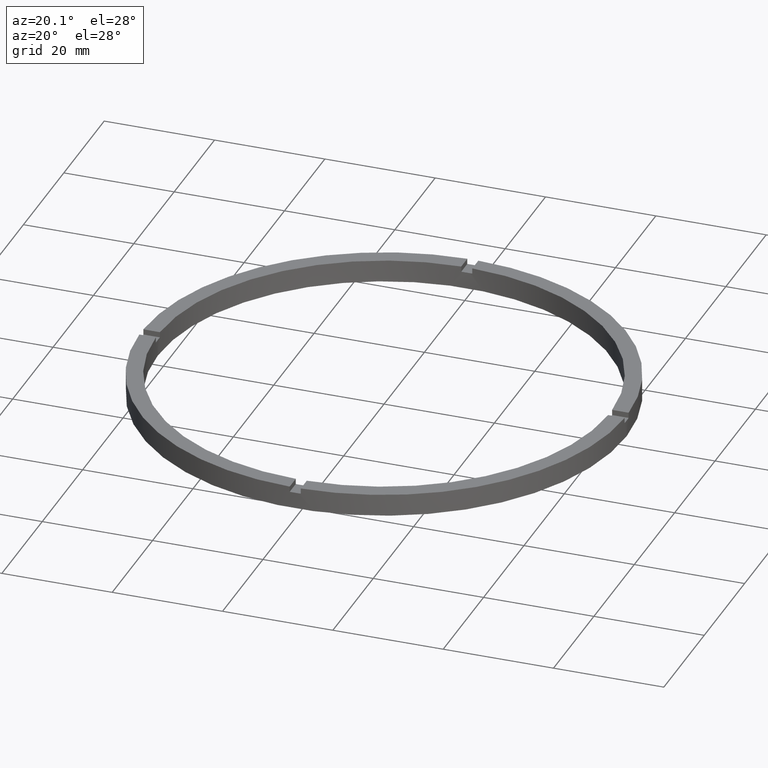
[diagram: clean part render]
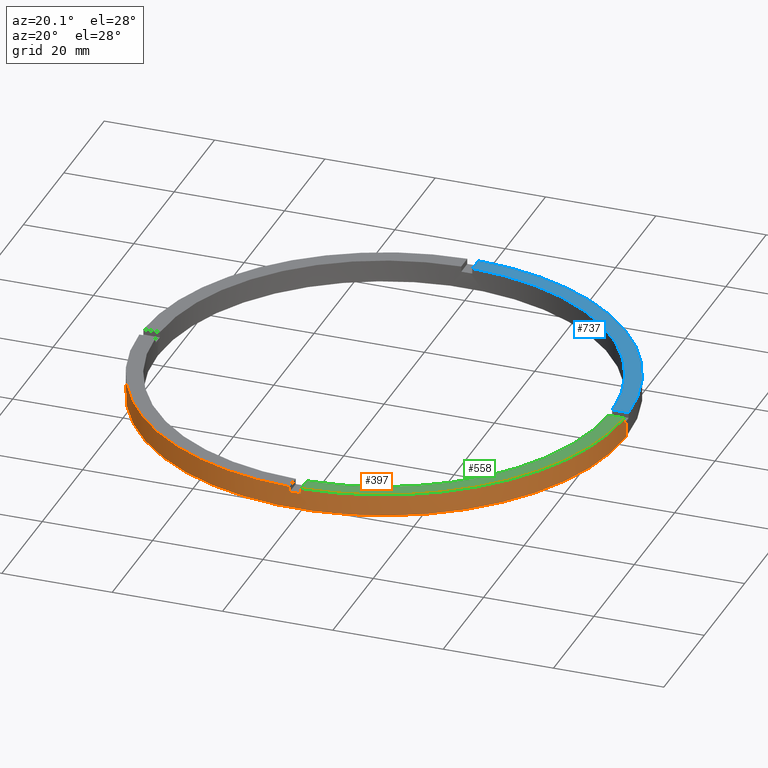
[diagram: same view with three faces highlighted in distinct colors, each labeled with its STEP entity id]
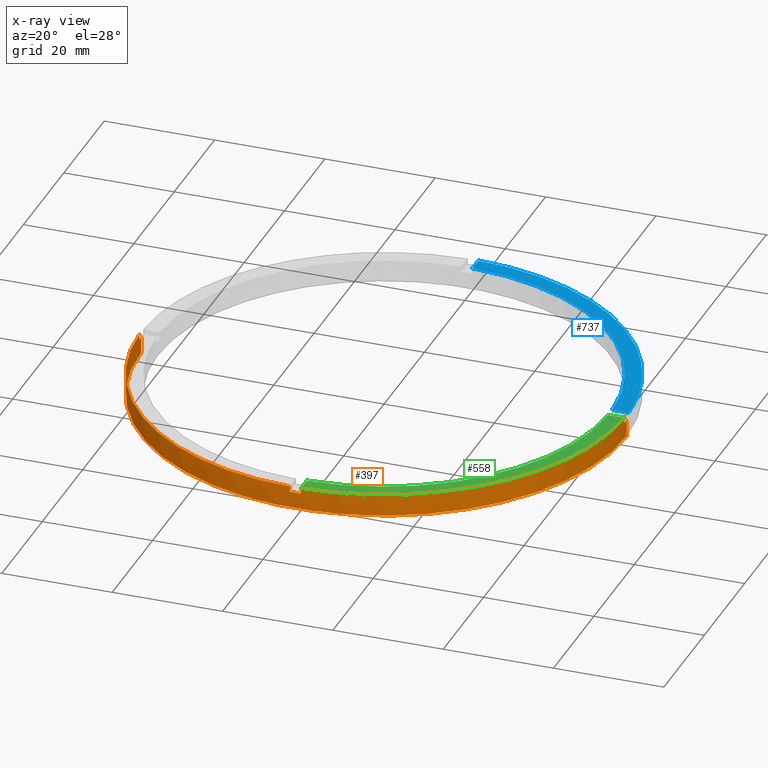
[diagram: x-ray of the same camera — body ghosted, the three highlighted faces saturated]
A machine part, auxiliary view with three faces highlighted in distinct colors.
The next image is the same camera in x-ray (body ghosted, the three faces saturated) — at least one of them is partly hidden behind the body in this view.
Their STEP definitions:

[orange] entity #397 — the highlighted cylindrical surface (partial cylindrical patch) has radius 44 mm, axis along (-0, -0, -1).
#1 = ORIENTED_EDGE ( 'NONE', *, *, #777, .T. ) ;
#3 = VERTEX_POINT ( 'NONE', #537 ) ;
#11 = CIRCLE ( 'NONE', #103, 44.00000000000000000 ) ;
#20 = CIRCLE ( 'NONE', #140, 44.00000000000000000 ) ;
#36 = VECTOR ( 'NONE', #351, 1000.000000000000000 ) ;
#37 = VECTOR ( 'NONE', #611, 1000.000000000000000 ) ;
#46 = LINE ( 'NONE', #644, #36 ) ;
#61 = LINE ( 'NONE', #336, #315 ) ;
#65 = DIRECTION ( 'NONE',  ( 1.000000000000000000, 0.000000000000000000, 0.000000000000000000 ) ) ;
#74 = DIRECTION ( 'NONE',  ( -0.000000000000000000, 0.000000000000000000, 1.000000000000000000 ) ) ;
#78 = CARTESIAN_POINT ( 'NONE',  ( -44.00000000000000000, 0.000000000000000000, 3.000000000000000000 ) ) ;
#81 = DIRECTION ( 'NONE',  ( 1.000000000000000000, 0.000000000000000000, 0.000000000000000000 ) ) ;
#83 = EDGE_CURVE ( 'NONE', #86, #191, #61, .T. ) ;
#86 = VERTEX_POINT ( 'NONE', #78 ) ;
#89 = CARTESIAN_POINT ( 'NONE',  ( 44.00000000000000000, 5.388445916248353619E-15, 3.000000000000000000 ) ) ;
#93 = CARTESIAN_POINT ( 'NONE',  ( 44.00000000000000000, 5.388445916248353619E-15, 4.000000000000000000 ) ) ;
#103 = AXIS2_PLACEMENT_3D ( 'NONE', #378, #282, #296 ) ;
#116 = DIRECTION ( 'NONE',  ( 0.000000000000000000, 0.000000000000000000, 1.000000000000000000 ) ) ;
#122 = AXIS2_PLACEMENT_3D ( 'NONE', #635, #680, #65 ) ;
#126 = CIRCLE ( 'NONE', #696, 44.00000000000000000 ) ;
#140 = AXIS2_PLACEMENT_3D ( 'NONE', #389, #116, #153 ) ;
#144 = LINE ( 'NONE', #439, #545 ) ;
#150 = DIRECTION ( 'NONE',  ( 0.000000000000000000, 0.000000000000000000, 1.000000000000000000 ) ) ;
#153 = DIRECTION ( 'NONE',  ( 1.000000000000000000, 0.000000000000000000, 0.000000000000000000 ) ) ;
#161 = EDGE_CURVE ( 'NONE', #86, #600, #11, .T. ) ;
#191 = VERTEX_POINT ( 'NONE', #764 ) ;
#201 = ORIENTED_EDGE ( 'NONE', *, *, #730, .F. ) ;
#203 = ORIENTED_EDGE ( 'NONE', *, *, #83, .T. ) ;
#244 = DIRECTION ( 'NONE',  ( -0.000000000000000000, -0.000000000000000000, -1.000000000000000000 ) ) ;
#249 = VERTEX_POINT ( 'NONE', #323 ) ;
#251 = AXIS2_PLACEMENT_3D ( 'NONE', #758, #150, #440 ) ;
#258 = AXIS2_PLACEMENT_3D ( 'NONE', #385, #441, #530 ) ;
#259 = EDGE_CURVE ( 'NONE', #436, #478, #327, .T. ) ;
#274 = CARTESIAN_POINT ( 'NONE',  ( 43.98863489584553577, -1.000000000000156319, 3.000000000000000000 ) ) ;
#282 = DIRECTION ( 'NONE',  ( 0.000000000000000000, 0.000000000000000000, 1.000000000000000000 ) ) ;
#283 = CIRCLE ( 'NONE', #382, 44.00000000000000000 ) ;
#285 = CARTESIAN_POINT ( 'NONE',  ( 43.98863489584553577, -1.000000000000156319, 4.000000000000000000 ) ) ;
#290 = CIRCLE ( 'NONE', #122, 44.00000000000000000 ) ;
#296 = DIRECTION ( 'NONE',  ( 1.000000000000000000, 0.000000000000000000, 0.000000000000000000 ) ) ;
#303 = DIRECTION ( 'NONE',  ( 0.000000000000000000, 0.000000000000000000, 1.000000000000000000 ) ) ;
#304 = CARTESIAN_POINT ( 'NONE',  ( 0.9999999999998416822, -43.98863489584554287, 3.000000000000000000 ) ) ;
#315 = VECTOR ( 'NONE', #598, 1000.000000000000000 ) ;
#323 = CARTESIAN_POINT ( 'NONE',  ( -1.000000000000158318, -43.98863489584553577, 3.000000000000000000 ) ) ;
#327 = LINE ( 'NONE', #93, #590 ) ;
#336 = CARTESIAN_POINT ( 'NONE',  ( -44.00000000000000000, 0.000000000000000000, 4.000000000000000000 ) ) ;
#351 = DIRECTION ( 'NONE',  ( -0.000000000000000000, -0.000000000000000000, -1.000000000000000000 ) ) ;
#378 = CARTESIAN_POINT ( 'NONE',  ( 0.000000000000000000, 0.000000000000000000, 3.000000000000000000 ) ) ;
#382 = AXIS2_PLACEMENT_3D ( 'NONE', #771, #303, #81 ) ;
#385 = CARTESIAN_POINT ( 'NONE',  ( 0.000000000000000000, 0.000000000000000000, 4.000000000000000000 ) ) ;
#386 = CARTESIAN_POINT ( 'NONE',  ( -1.000000000000158318, -43.98863489584553577, 4.000000000000000000 ) ) ;
#389 = CARTESIAN_POINT ( 'NONE',  ( 0.000000000000000000, 0.000000000000000000, 3.000000000000000000 ) ) ;
#397 = ADVANCED_FACE ( 'NONE', ( #514 ), #763, .T. ) ;
#414 = ORIENTED_EDGE ( 'NONE', *, *, #743, .T. ) ;
#422 = ORIENTED_EDGE ( 'NONE', *, *, #759, .F. ) ;
#432 = EDGE_LOOP ( 'NONE', ( #724, #422, #703, #201, #749, #433, #1, #675, #729, #687, #203, #414 ) ) ;
#433 = ORIENTED_EDGE ( 'NONE', *, *, #614, .F. ) ;
#436 = VERTEX_POINT ( 'NONE', #89 ) ;
#439 = CARTESIAN_POINT ( 'NONE',  ( 43.98863489584553577, -1.000000000000156319, 4.000000000000000000 ) ) ;
#440 = DIRECTION ( 'NONE',  ( 1.000000000000000000, 0.000000000000000000, 0.000000000000000000 ) ) ;
#441 = DIRECTION ( 'NONE',  ( -0.000000000000000000, -0.000000000000000000, -1.000000000000000000 ) ) ;
#476 = EDGE_CURVE ( 'NONE', #3, #600, #778, .T. ) ;
#478 = VERTEX_POINT ( 'NONE', #775 ) ;
#514 = FACE_OUTER_BOUND ( 'NONE', #432, .T. ) ;
#520 = DIRECTION ( 'NONE',  ( -0.000000000000000000, -0.000000000000000000, -1.000000000000000000 ) ) ;
#530 = DIRECTION ( 'NONE',  ( -1.000000000000000000, 0.000000000000000000, 0.000000000000000000 ) ) ;
#537 = CARTESIAN_POINT ( 'NONE',  ( -43.98863489584553577, -1.000000000000029532, 4.000000000000000000 ) ) ;
#540 = CIRCLE ( 'NONE', #251, 44.00000000000000000 ) ;
#545 = VECTOR ( 'NONE', #685, 1000.000000000000000 ) ;
#548 = LINE ( 'NONE', #650, #37 ) ;
#553 = EDGE_CURVE ( 'NONE', #593, #722, #46, .T. ) ;
#571 = VECTOR ( 'NONE', #520, 1000.000000000000000 ) ;
#590 = VECTOR ( 'NONE', #244, 1000.000000000000000 ) ;
#593 = VERTEX_POINT ( 'NONE', #638 ) ;
#596 = VERTEX_POINT ( 'NONE', #386 ) ;
#598 = DIRECTION ( 'NONE',  ( -0.000000000000000000, -0.000000000000000000, -1.000000000000000000 ) ) ;
#600 = VERTEX_POINT ( 'NONE', #641 ) ;
#602 = DIRECTION ( 'NONE',  ( 1.000000000000000000, 0.000000000000000000, 0.000000000000000000 ) ) ;
#610 = CARTESIAN_POINT ( 'NONE',  ( 0.000000000000000000, 0.000000000000000000, 3.000000000000000000 ) ) ;
#611 = DIRECTION ( 'NONE',  ( 0.000000000000000000, 0.000000000000000000, 1.000000000000000000 ) ) ;
#614 = EDGE_CURVE ( 'NONE', #249, #722, #126, .T. ) ;
#619 = EDGE_CURVE ( 'NONE', #701, #745, #144, .T. ) ;
#624 = EDGE_CURVE ( 'NONE', #3, #596, #283, .T. ) ;
#635 = CARTESIAN_POINT ( 'NONE',  ( 0.000000000000000000, 0.000000000000000000, 4.000000000000000000 ) ) ;
#638 = CARTESIAN_POINT ( 'NONE',  ( 0.9999999999998416822, -43.98863489584554287, 4.000000000000000000 ) ) ;
#641 = CARTESIAN_POINT ( 'NONE',  ( -43.98863489584553577, -1.000000000000029532, 3.000000000000000000 ) ) ;
#644 = CARTESIAN_POINT ( 'NONE',  ( 0.9999999999998416822, -43.98863489584554287, 4.000000000000000000 ) ) ;
#648 = CARTESIAN_POINT ( 'NONE',  ( -43.98863489584553577, -1.000000000000029532, 4.000000000000000000 ) ) ;
#650 = CARTESIAN_POINT ( 'NONE',  ( -1.000000000000158318, -43.98863489584553577, 4.000000000000000000 ) ) ;
#675 = ORIENTED_EDGE ( 'NONE', *, *, #624, .F. ) ;
#680 = DIRECTION ( 'NONE',  ( 0.000000000000000000, 0.000000000000000000, 1.000000000000000000 ) ) ;
#685 = DIRECTION ( 'NONE',  ( 0.000000000000000000, 0.000000000000000000, 1.000000000000000000 ) ) ;
#687 = ORIENTED_EDGE ( 'NONE', *, *, #161, .F. ) ;
#696 = AXIS2_PLACEMENT_3D ( 'NONE', #610, #74, #602 ) ;
#701 = VERTEX_POINT ( 'NONE', #274 ) ;
#703 = ORIENTED_EDGE ( 'NONE', *, *, #619, .T. ) ;
#722 = VERTEX_POINT ( 'NONE', #304 ) ;
#724 = ORIENTED_EDGE ( 'NONE', *, *, #259, .F. ) ;
#729 = ORIENTED_EDGE ( 'NONE', *, *, #476, .T. ) ;
#730 = EDGE_CURVE ( 'NONE', #593, #745, #290, .T. ) ;
#743 = EDGE_CURVE ( 'NONE', #191, #478, #540, .T. ) ;
#745 = VERTEX_POINT ( 'NONE', #285 ) ;
#749 = ORIENTED_EDGE ( 'NONE', *, *, #553, .T. ) ;
#758 = CARTESIAN_POINT ( 'NONE',  ( 0.000000000000000000, 0.000000000000000000, 0.000000000000000000 ) ) ;
#759 = EDGE_CURVE ( 'NONE', #701, #436, #20, .T. ) ;
#763 = CYLINDRICAL_SURFACE ( 'NONE', #258, 44.00000000000000000 ) ;
#764 = CARTESIAN_POINT ( 'NONE',  ( -44.00000000000000000, 0.000000000000000000, 0.000000000000000000 ) ) ;
#771 = CARTESIAN_POINT ( 'NONE',  ( 0.000000000000000000, 0.000000000000000000, 4.000000000000000000 ) ) ;
#775 = CARTESIAN_POINT ( 'NONE',  ( 44.00000000000000000, 5.388445916248353619E-15, 0.000000000000000000 ) ) ;
#777 = EDGE_CURVE ( 'NONE', #249, #596, #548, .T. ) ;
#778 = LINE ( 'NONE', #648, #571 ) ;

[blue] entity #737 — the highlighted planar face has unit normal (0, 0, 1).
#9 = VERTEX_POINT ( 'NONE', #522 ) ;
#13 = AXIS2_PLACEMENT_3D ( 'NONE', #111, #380, #75 ) ;
#24 = LINE ( 'NONE', #384, #278 ) ;
#75 = DIRECTION ( 'NONE',  ( 1.000000000000000000, 0.000000000000000000, -0.000000000000000000 ) ) ;
#85 = VERTEX_POINT ( 'NONE', #412 ) ;
#88 = PLANE ( 'NONE',  #13 ) ;
#100 = EDGE_CURVE ( 'NONE', #187, #9, #546, .T. ) ;
#101 = DIRECTION ( 'NONE',  ( 1.000000000000000000, 0.000000000000000000, 0.000000000000000000 ) ) ;
#111 = CARTESIAN_POINT ( 'NONE',  ( 0.000000000000000000, 0.000000000000000000, 4.000000000000000000 ) ) ;
#142 = DIRECTION ( 'NONE',  ( 0.000000000000000000, 0.000000000000000000, 1.000000000000000000 ) ) ;
#187 = VERTEX_POINT ( 'NONE', #461 ) ;
#211 = CARTESIAN_POINT ( 'NONE',  ( 0.9999999999999740208, 33.99999999999999289, 4.000000000000000000 ) ) ;
#255 = EDGE_LOOP ( 'NONE', ( #517, #750, #534, #738 ) ) ;
#273 = FACE_OUTER_BOUND ( 'NONE', #255, .T. ) ;
#278 = VECTOR ( 'NONE', #603, 1000.000000000000000 ) ;
#316 = LINE ( 'NONE', #211, #583 ) ;
#342 = CARTESIAN_POINT ( 'NONE',  ( 0.000000000000000000, 0.000000000000000000, 4.000000000000000000 ) ) ;
#344 = EDGE_CURVE ( 'NONE', #9, #85, #316, .T. ) ;
#347 = DIRECTION ( 'NONE',  ( 1.000000000000000000, 0.000000000000000000, 0.000000000000000000 ) ) ;
#380 = DIRECTION ( 'NONE',  ( 0.000000000000000000, 0.000000000000000000, 1.000000000000000000 ) ) ;
#381 = DIRECTION ( 'NONE',  ( 0.000000000000000000, 1.000000000000000000, 0.000000000000000000 ) ) ;
#384 = CARTESIAN_POINT ( 'NONE',  ( 33.99999999999998579, 0.9999999999998430145, 4.000000000000000000 ) ) ;
#390 = AXIS2_PLACEMENT_3D ( 'NONE', #411, #739, #101 ) ;
#404 = EDGE_CURVE ( 'NONE', #665, #85, #504, .T. ) ;
#411 = CARTESIAN_POINT ( 'NONE',  ( 0.000000000000000000, 0.000000000000000000, 4.000000000000000000 ) ) ;
#412 = CARTESIAN_POINT ( 'NONE',  ( 0.9999999999999740208, 43.98863489584554287, 4.000000000000000000 ) ) ;
#461 = CARTESIAN_POINT ( 'NONE',  ( 40.98780306383840610, 0.9999999999998434586, 4.000000000000000000 ) ) ;
#504 = CIRCLE ( 'NONE', #390, 44.00000000000000000 ) ;
#512 = CARTESIAN_POINT ( 'NONE',  ( 43.98863489584554287, 0.9999999999998436806, 4.000000000000000000 ) ) ;
#517 = ORIENTED_EDGE ( 'NONE', *, *, #344, .F. ) ;
#522 = CARTESIAN_POINT ( 'NONE',  ( 0.9999999999999740208, 40.98780306383839900, 4.000000000000000000 ) ) ;
#534 = ORIENTED_EDGE ( 'NONE', *, *, #720, .F. ) ;
#546 = CIRCLE ( 'NONE', #672, 41.00000000000000000 ) ;
#583 = VECTOR ( 'NONE', #381, 1000.000000000000000 ) ;
#603 = DIRECTION ( 'NONE',  ( -1.000000000000000000, -6.505213034913025371E-17, -0.000000000000000000 ) ) ;
#665 = VERTEX_POINT ( 'NONE', #512 ) ;
#672 = AXIS2_PLACEMENT_3D ( 'NONE', #342, #142, #347 ) ;
#720 = EDGE_CURVE ( 'NONE', #665, #187, #24, .T. ) ;
#737 = ADVANCED_FACE ( 'NONE', ( #273 ), #88, .T. ) ;
#738 = ORIENTED_EDGE ( 'NONE', *, *, #404, .T. ) ;
#739 = DIRECTION ( 'NONE',  ( 0.000000000000000000, 0.000000000000000000, 1.000000000000000000 ) ) ;
#750 = ORIENTED_EDGE ( 'NONE', *, *, #100, .F. ) ;

[green] entity #558 — the highlighted planar face has unit normal (0, 0, 1).
#2 = CIRCLE ( 'NONE', #607, 41.00000000000000000 ) ;
#7 = FACE_OUTER_BOUND ( 'NONE', #704, .T. ) ;
#58 = VECTOR ( 'NONE', #387, 1000.000000000000000 ) ;
#65 = DIRECTION ( 'NONE',  ( 1.000000000000000000, 0.000000000000000000, 0.000000000000000000 ) ) ;
#122 = AXIS2_PLACEMENT_3D ( 'NONE', #635, #680, #65 ) ;
#141 = CARTESIAN_POINT ( 'NONE',  ( 0.000000000000000000, 0.000000000000000000, 4.000000000000000000 ) ) ;
#151 = CARTESIAN_POINT ( 'NONE',  ( 0.000000000000000000, 0.000000000000000000, 4.000000000000000000 ) ) ;
#164 = EDGE_CURVE ( 'NONE', #593, #713, #560, .T. ) ;
#183 = CARTESIAN_POINT ( 'NONE',  ( 33.99999999999998579, -1.000000000000156986, 4.000000000000000000 ) ) ;
#197 = ORIENTED_EDGE ( 'NONE', *, *, #164, .F. ) ;
#200 = CARTESIAN_POINT ( 'NONE',  ( 40.98780306383839189, -1.000000000000156541, 4.000000000000000000 ) ) ;
#221 = DIRECTION ( 'NONE',  ( 0.000000000000000000, 0.000000000000000000, 1.000000000000000000 ) ) ;
#269 = PLANE ( 'NONE',  #620 ) ;
#280 = DIRECTION ( 'NONE',  ( 1.000000000000000000, 0.000000000000000000, -0.000000000000000000 ) ) ;
#281 = VECTOR ( 'NONE', #345, 1000.000000000000000 ) ;
#285 = CARTESIAN_POINT ( 'NONE',  ( 43.98863489584553577, -1.000000000000156319, 4.000000000000000000 ) ) ;
#286 = DIRECTION ( 'NONE',  ( 1.000000000000000000, 0.000000000000000000, 0.000000000000000000 ) ) ;
#290 = CIRCLE ( 'NONE', #122, 44.00000000000000000 ) ;
#330 = VERTEX_POINT ( 'NONE', #200 ) ;
#345 = DIRECTION ( 'NONE',  ( 1.000000000000000000, 6.505213034913025371E-17, 0.000000000000000000 ) ) ;
#355 = DIRECTION ( 'NONE',  ( 0.000000000000000000, 0.000000000000000000, 1.000000000000000000 ) ) ;
#373 = EDGE_CURVE ( 'NONE', #713, #330, #2, .T. ) ;
#387 = DIRECTION ( 'NONE',  ( -1.301042606982605074E-16, 1.000000000000000000, -0.000000000000000000 ) ) ;
#455 = ORIENTED_EDGE ( 'NONE', *, *, #681, .F. ) ;
#466 = ORIENTED_EDGE ( 'NONE', *, *, #730, .T. ) ;
#557 = LINE ( 'NONE', #183, #281 ) ;
#558 = ADVANCED_FACE ( 'NONE', ( #7 ), #269, .T. ) ;
#560 = LINE ( 'NONE', #617, #58 ) ;
#593 = VERTEX_POINT ( 'NONE', #638 ) ;
#607 = AXIS2_PLACEMENT_3D ( 'NONE', #151, #221, #286 ) ;
#617 = CARTESIAN_POINT ( 'NONE',  ( 0.9999999999998404610, -34.00000000000017764, 4.000000000000000000 ) ) ;
#620 = AXIS2_PLACEMENT_3D ( 'NONE', #141, #355, #280 ) ;
#635 = CARTESIAN_POINT ( 'NONE',  ( 0.000000000000000000, 0.000000000000000000, 4.000000000000000000 ) ) ;
#638 = CARTESIAN_POINT ( 'NONE',  ( 0.9999999999998416822, -43.98863489584554287, 4.000000000000000000 ) ) ;
#642 = CARTESIAN_POINT ( 'NONE',  ( 0.9999999999998414602, -40.98780306383840610, 4.000000000000000000 ) ) ;
#680 = DIRECTION ( 'NONE',  ( 0.000000000000000000, 0.000000000000000000, 1.000000000000000000 ) ) ;
#681 = EDGE_CURVE ( 'NONE', #330, #745, #557, .T. ) ;
#704 = EDGE_LOOP ( 'NONE', ( #455, #711, #197, #466 ) ) ;
#711 = ORIENTED_EDGE ( 'NONE', *, *, #373, .F. ) ;
#713 = VERTEX_POINT ( 'NONE', #642 ) ;
#730 = EDGE_CURVE ( 'NONE', #593, #745, #290, .T. ) ;
#745 = VERTEX_POINT ( 'NONE', #285 ) ;